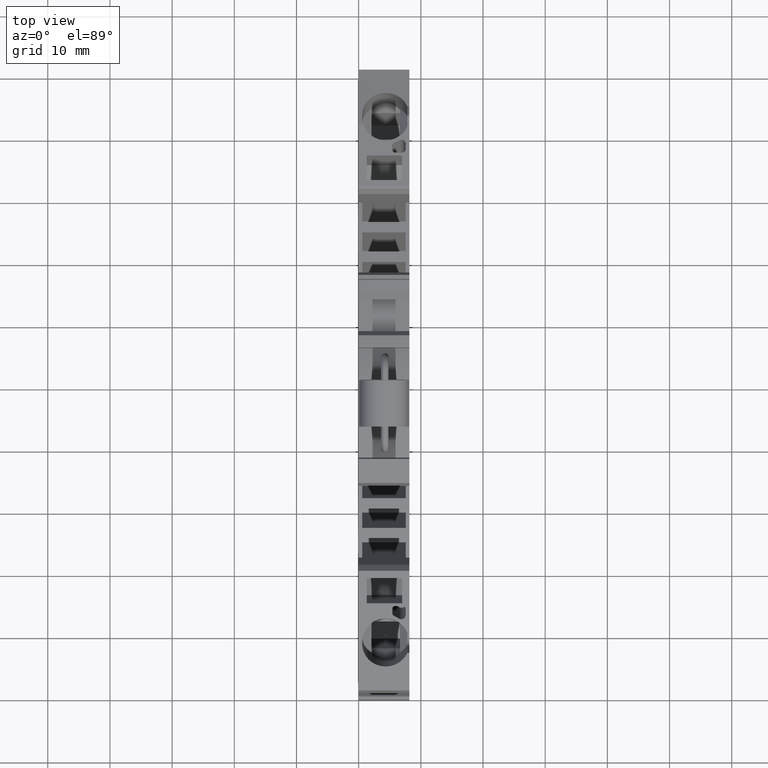
[diagram: clean part render]
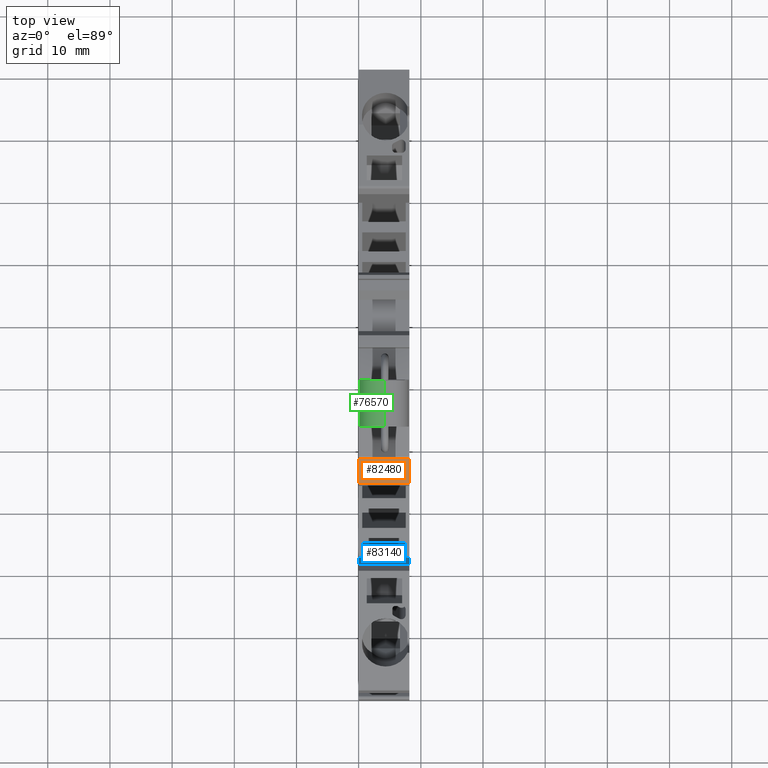
[diagram: same view with three faces highlighted in distinct colors, each labeled with its STEP entity id]
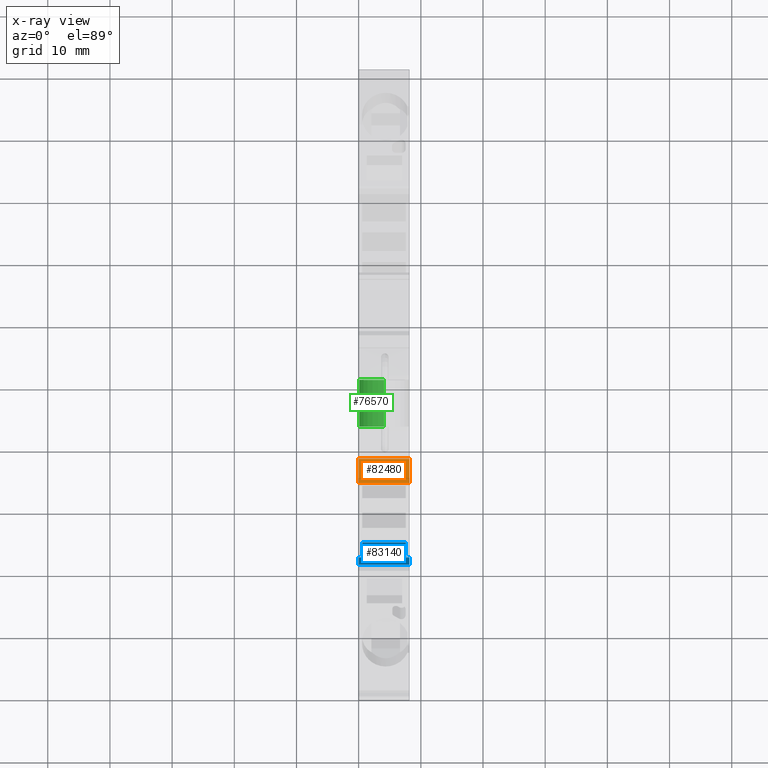
[diagram: x-ray of the same camera — body ghosted, the three highlighted faces saturated]
A machine part, top view with three faces highlighted in distinct colors.
The next image is the same camera in x-ray (body ghosted, the three faces saturated) — at least one of them is partly hidden behind the body in this view.
Their STEP definitions:

[orange] entity #82480 — the highlighted planar face has unit normal (0, -0.1736, 0.9848).
#1990=CARTESIAN_POINT('',(-13.2739568349981,1.50911064256004,
-53.6700000041996));
#2000=VERTEX_POINT('',#1990);
#2030=CARTESIAN_POINT('',(-1.08662874254151E-8,1.50911064260222,
-53.6700000073042));
#2040=DIRECTION('',(-1.,-3.17773585244947E-12,2.33885807603414E-10));
#2050=VECTOR('',#2040,1.);
#2060=LINE('',#2030,#2050);
#2070=CARTESIAN_POINT('',(-9.34245630326948,1.50911064257253,
-53.6700000051191));
#2080=VERTEX_POINT('',#2070);
#2090=EDGE_CURVE('',#2080,#2000,#2060,.T.);
#12080=CARTESIAN_POINT('',(-9.3424563032633,1.509110642565,
-45.5200000069333));
#12090=VERTEX_POINT('',#12080);
#12120=CARTESIAN_POINT('',(-1.08662874254151E-8,1.50911064259469,
-45.5200000092077));
#12130=DIRECTION('',(1.,3.1777358524583E-12,-2.43451094301858E-10));
#12140=VECTOR('',#12130,1.);
#12150=LINE('',#12120,#12140);
#12160=CARTESIAN_POINT('',(-13.2739568349621,1.50911064255251,
-45.5200000059762));
#12170=VERTEX_POINT('',#12160);
#12180=EDGE_CURVE('',#12170,#12090,#12150,.T.);
#22390=CARTESIAN_POINT('',(-13.2739568347611,1.50911064251046,
-7.22589277302177E-9));
#22400=DIRECTION('',(4.41561624640917E-12,-9.23715873573282E-13,1.));
#22410=VECTOR('',#22400,1.);
#22420=LINE('',#22390,#22410);
#22430=EDGE_CURVE('',#2000,#12170,#22420,.T.);
#82190=CARTESIAN_POINT('',(-9.34245630322881,1.50911064252295,
-7.22589277302177E-9));
#82200=DIRECTION('',(7.57749865496118E-13,-9.23715873584906E-13,1.));
#82210=VECTOR('',#82200,1.);
#82220=LINE('',#82190,#82210);
#82230=EDGE_CURVE('',#2080,#12090,#82220,.T.);
#82370=CARTESIAN_POINT('',(-10.9130551238523,1.50911064256253,
-48.2436247327293));
#82380=DIRECTION('',(3.17773585223342E-12,-1.,-9.23715873587314E-13));
#82390=DIRECTION('',(-1.,-3.17773585223356E-12,1.48295498895594E-13));
#82400=AXIS2_PLACEMENT_3D('',#82370,#82380,#82390);
#82410=PLANE('',#82400);
#82420=ORIENTED_EDGE('',*,*,#2090,.F.);
#82430=ORIENTED_EDGE('',*,*,#22430,.F.);
#82440=ORIENTED_EDGE('',*,*,#12180,.F.);
#82450=ORIENTED_EDGE('',*,*,#82230,.T.);
#82460=EDGE_LOOP('',(#82450,#82440,#82430,#82420));
#82470=FACE_OUTER_BOUND('',#82460,.T.);
#82480=ADVANCED_FACE('',(#82470),#82410,.T.);

[blue] entity #83140 — the highlighted planar face has unit normal (-0, -0.9848, -0.1736).
#1670=CARTESIAN_POINT('',(-26.8424565542009,3.20911064250277,
-53.6700000010962));
#1680=VERTEX_POINT('',#1670);
#1710=CARTESIAN_POINT('',(-26.8424565541907,-2.19556284264399E-9,
-53.6700000009638));
#1720=DIRECTION('',(-3.17751380766504E-12,1.,-4.12525722407491E-11));
#1730=VECTOR('',#1720,1.);
#1740=LINE('',#1710,#1730);
#1750=CARTESIAN_POINT('',(-26.8424565542241,10.5091106425107,
-53.6700000013974));
#1760=VERTEX_POINT('',#1750);
#1770=EDGE_CURVE('',#1680,#1760,#1740,.T.);
#12400=CARTESIAN_POINT('',(-26.8424565542169,10.5091106425091,
-45.5200000031157));
#12410=VERTEX_POINT('',#12400);
#12440=CARTESIAN_POINT('',(-26.8424565541835,-2.19556284264399E-9,
-45.5200000025986));
#12450=DIRECTION('',(3.17751380767206E-12,-1.,4.91964162810182E-11));
#12460=VECTOR('',#12450,1.);
#12470=LINE('',#12440,#12460);
#12480=CARTESIAN_POINT('',(-26.8424565541936,3.20911064254207,
-45.5200000027565));
#12490=VERTEX_POINT('',#12480);
#12500=EDGE_CURVE('',#12410,#12490,#12470,.T.);
#23700=CARTESIAN_POINT('',(-26.8424565541766,10.509110642492,
-7.22586435131234E-9));
#23710=DIRECTION('',(8.84123314096123E-13,-1.93718620094678E-13,1.));
#23720=VECTOR('',#23710,1.);
#23730=LINE('',#23700,#23720);
#23740=CARTESIAN_POINT('',(-26.8424565542235,10.5091106425106,
-53.0950000044303));
#23750=VERTEX_POINT('',#23740);
#23760=EDGE_CURVE('',#1760,#23750,#23730,.T.);
#23980=CARTESIAN_POINT('',(-26.8424565542174,10.5091106425092,
-46.0950000073219));
#23990=VERTEX_POINT('',#23980);
#24020=EDGE_CURVE('',#23990,#12410,#23730,.T.);
#82630=CARTESIAN_POINT('',(-26.8424565541534,3.20911064276161,
-7.22589277302177E-9));
#82640=DIRECTION('',(8.84123314080157E-13,4.82273764259233E-12,1.));
#82650=VECTOR('',#82640,1.);
#82660=LINE('',#82630,#82650);
#82670=EDGE_CURVE('',#1680,#12490,#82660,.T.);
#82800=CARTESIAN_POINT('',(-26.8424565542174,10.5091106425092,
-46.0950000073219));
#82810=DIRECTION('',(-1.,-3.17751380762857E-12,8.84087878605389E-13));
#82820=DIRECTION('',(8.84087878606005E-13,-1.93718620094678E-13,1.));
#82830=AXIS2_PLACEMENT_3D('',#82800,#82810,#82820);
#82840=PLANE('',#82830);
#82850=ORIENTED_EDGE('',*,*,#23760,.T.);
#82860=ORIENTED_EDGE('',*,*,#1770,.T.);
#82870=ORIENTED_EDGE('',*,*,#82670,.F.);
#82880=ORIENTED_EDGE('',*,*,#12500,.T.);
#82890=ORIENTED_EDGE('',*,*,#24020,.T.);
#82900=CARTESIAN_POINT('',(-26.8424565542174,10.5091106425092,
-46.0950000073219));
#82910=DIRECTION('',(-3.17756931877966E-12,1.,1.93718481887815E-13));
#82920=VECTOR('',#82910,1.);
#82930=LINE('',#82900,#82920);
#82940=CARTESIAN_POINT('',(-26.8424565542672,26.2091106425092,
-46.0950000073188));
#82950=VERTEX_POINT('',#82940);
#82960=EDGE_CURVE('',#23990,#82950,#82930,.T.);
#82970=ORIENTED_EDGE('',*,*,#82960,.F.);
#82980=CARTESIAN_POINT('',(-26.8424565542734,26.2091106425106,
-53.0950000044273));
#82990=DIRECTION('',(8.8408229442541E-13,-1.93718546509745E-13,1.));
#83000=VECTOR('',#82990,1.);
#83010=LINE('',#82980,#83000);
#83020=CARTESIAN_POINT('',(-26.8424565542734,26.2091106425106,
-53.0950000044273));
#83030=VERTEX_POINT('',#83020);
#83040=EDGE_CURVE('',#83030,#82950,#83010,.T.);
#83050=ORIENTED_EDGE('',*,*,#83040,.T.);
#83060=CARTESIAN_POINT('',(-26.8424565542235,10.5091106425106,
-53.0950000044303));
#83070=DIRECTION('',(-3.17756931877966E-12,1.,1.93718481887815E-13));
#83080=VECTOR('',#83070,1.);
#83090=LINE('',#83060,#83080);
#83100=EDGE_CURVE('',#23750,#83030,#83090,.T.);
#83110=ORIENTED_EDGE('',*,*,#83100,.T.);
#83120=EDGE_LOOP('',(#83110,#83050,#82970,#82890,#82880,#82870,#82860,
#82850));
#83130=FACE_OUTER_BOUND('',#83120,.T.);
#83140=ADVANCED_FACE('',(#83130),#82840,.F.);

[green] entity #76570 — the highlighted cylindrical surface (edge-blend (fillet) strip) has radius 4 mm, axis along (0, -0.9996, -0.0268).
#74870=CARTESIAN_POINT('',(4.38825810505016,-3.98371013672878,
-49.595000013435));
#74880=DIRECTION('',(-0.989101789065928,-0.147233321183011,
-1.26038828161194E-12));
#74890=DIRECTION('',(-0.147233321183011,0.989101789065928,
-1.39149026538549E-12));
#74900=AXIS2_PLACEMENT_3D('',#74870,#74880,#74890);
#74910=CIRCLE('',#74900,4.);
#74920=CARTESIAN_POINT('',(3.79932482029558,-0.0273029804684151,
-49.5950000134405));
#74930=VERTEX_POINT('',#74920);
#74940=CARTESIAN_POINT('',(4.9771913897822,-7.94011729299249,
-49.5950000134294));
#74950=VERTEX_POINT('',#74940);
#74980=EDGE_CURVE('',#74950,#74930,#74910,.T.);
#76260=CARTESIAN_POINT('',(17.2960388261823,-2.06231494193386,
-49.5950000134185));
#76270=DIRECTION('',(-0.989101789065928,-0.147233321183011,
-1.26038828161194E-12));
#76280=DIRECTION('',(-0.147233321183011,0.989101789065928,
-1.39149026538549E-12));
#76290=AXIS2_PLACEMENT_3D('',#76260,#76270,#76280);
#76300=CYLINDRICAL_SURFACE('',#76290,4.);
#76310=CARTESIAN_POINT('',(17.8849721109143,-6.01872209819758,
-49.595000013413));
#76320=DIRECTION('',(-0.989101789065928,-0.147233321183011,
-1.26038828161194E-12));
#76330=VECTOR('',#76320,1.);
#76340=LINE('',#76310,#76330);
#76350=CARTESIAN_POINT('',(-2.44107202813649,-9.04436720185379,
-49.5950000134389));
#76360=VERTEX_POINT('',#76350);
#76370=EDGE_CURVE('',#74950,#76360,#76340,.T.);
#76380=ORIENTED_EDGE('',*,*,#76370,.F.);
#76390=CARTESIAN_POINT('',(-3.03000531286853,-5.08796004559008,
-49.5950000134444));
#76400=DIRECTION('',(-0.989101789065928,-0.147233321183011,
-1.26038828161194E-12));
#76410=DIRECTION('',(-0.147233321183011,0.989101789065928,
-1.39149026538549E-12));
#76420=AXIS2_PLACEMENT_3D('',#76390,#76400,#76410);
#76430=CIRCLE('',#76420,4.);
#76440=CARTESIAN_POINT('',(-3.61893859769888,-1.131552889341,
-49.59500001345));
#76450=VERTEX_POINT('',#76440);
#76460=EDGE_CURVE('',#76360,#76450,#76430,.T.);
#76470=ORIENTED_EDGE('',*,*,#76460,.F.);
#76480=CARTESIAN_POINT('',(16.7071055414502,1.89409221432985,
-49.5950000134241));
#76490=DIRECTION('',(-0.989101789065928,-0.147233321183011,
-1.26038828161194E-12));
#76500=VECTOR('',#76490,1.);
#76510=LINE('',#76480,#76500);
#76520=EDGE_CURVE('',#74930,#76450,#76510,.T.);
#76530=ORIENTED_EDGE('',*,*,#76520,.T.);
#76540=ORIENTED_EDGE('',*,*,#74980,.T.);
#76550=EDGE_LOOP('',(#76540,#76530,#76470,#76380));
#76560=FACE_OUTER_BOUND('',#76550,.T.);
#76570=ADVANCED_FACE('',(#76560),#76300,.T.);